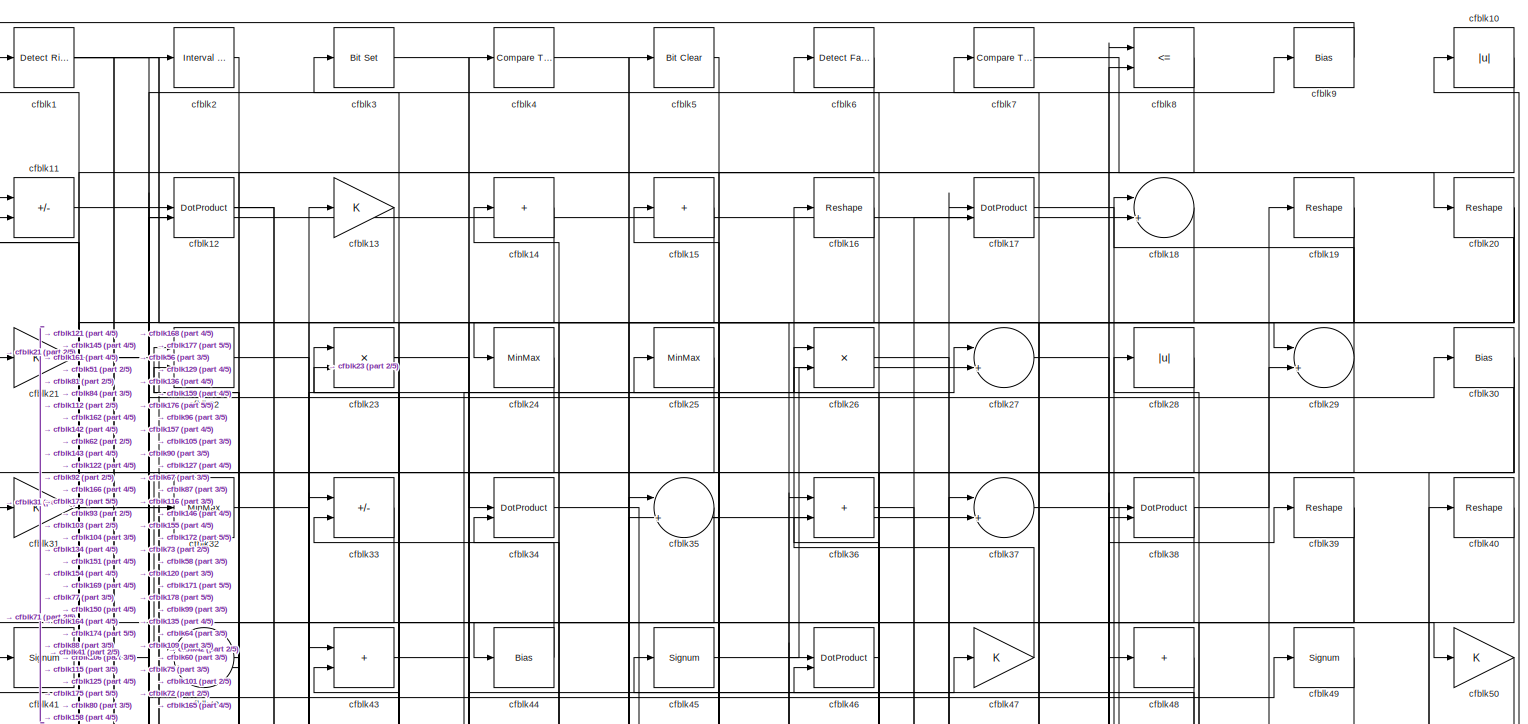
[diagram: root canvas - part 1/5, full width, top band]
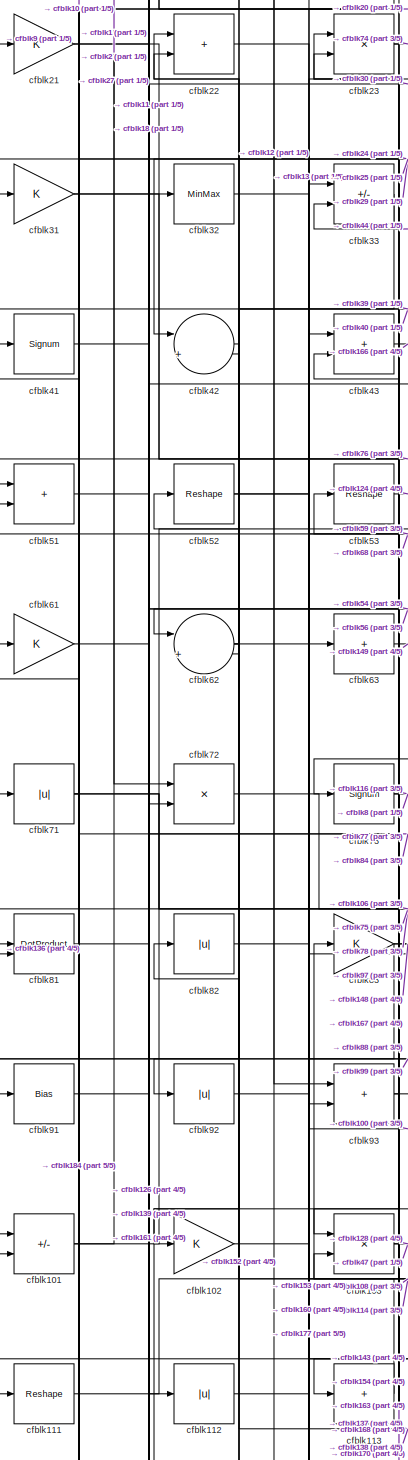
[diagram: root canvas - part 2/5, middle left region]
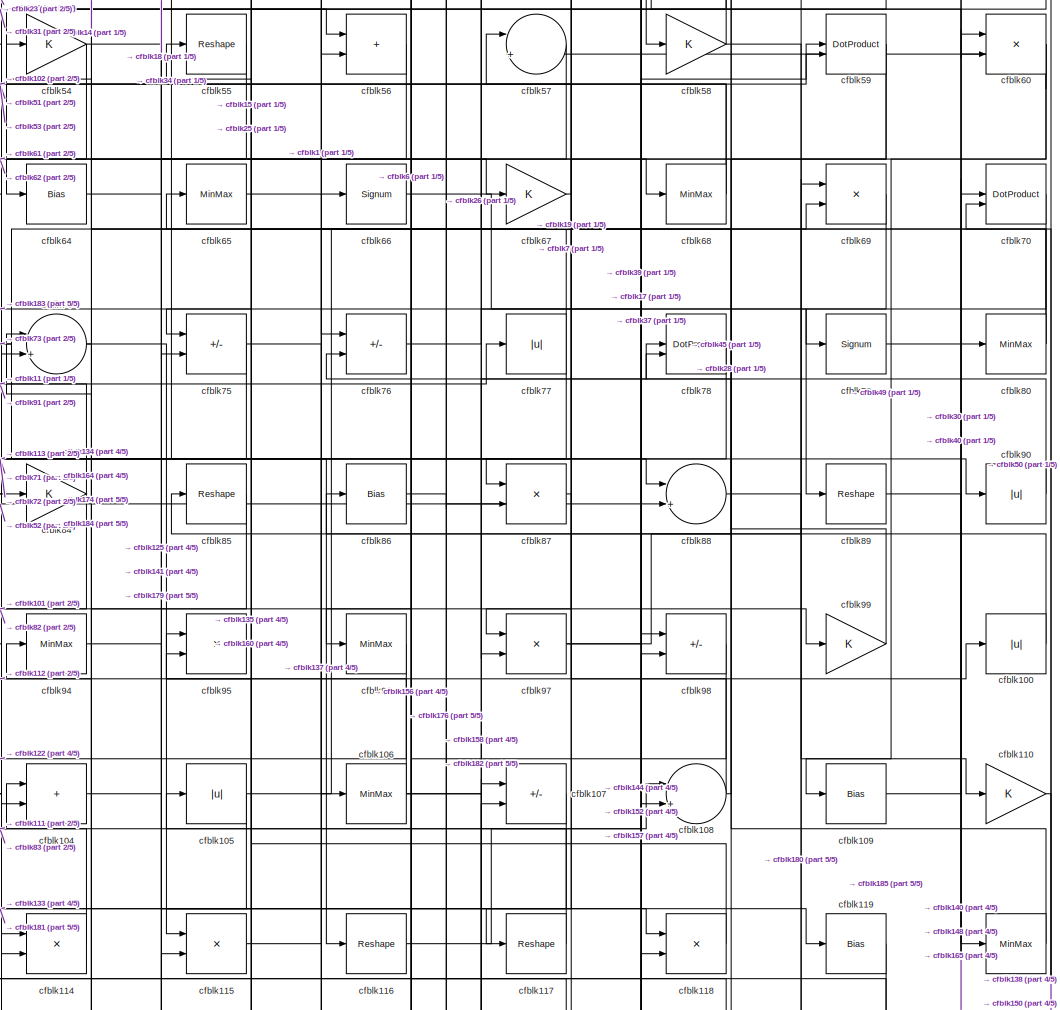
[diagram: root canvas - part 3/5, central region]
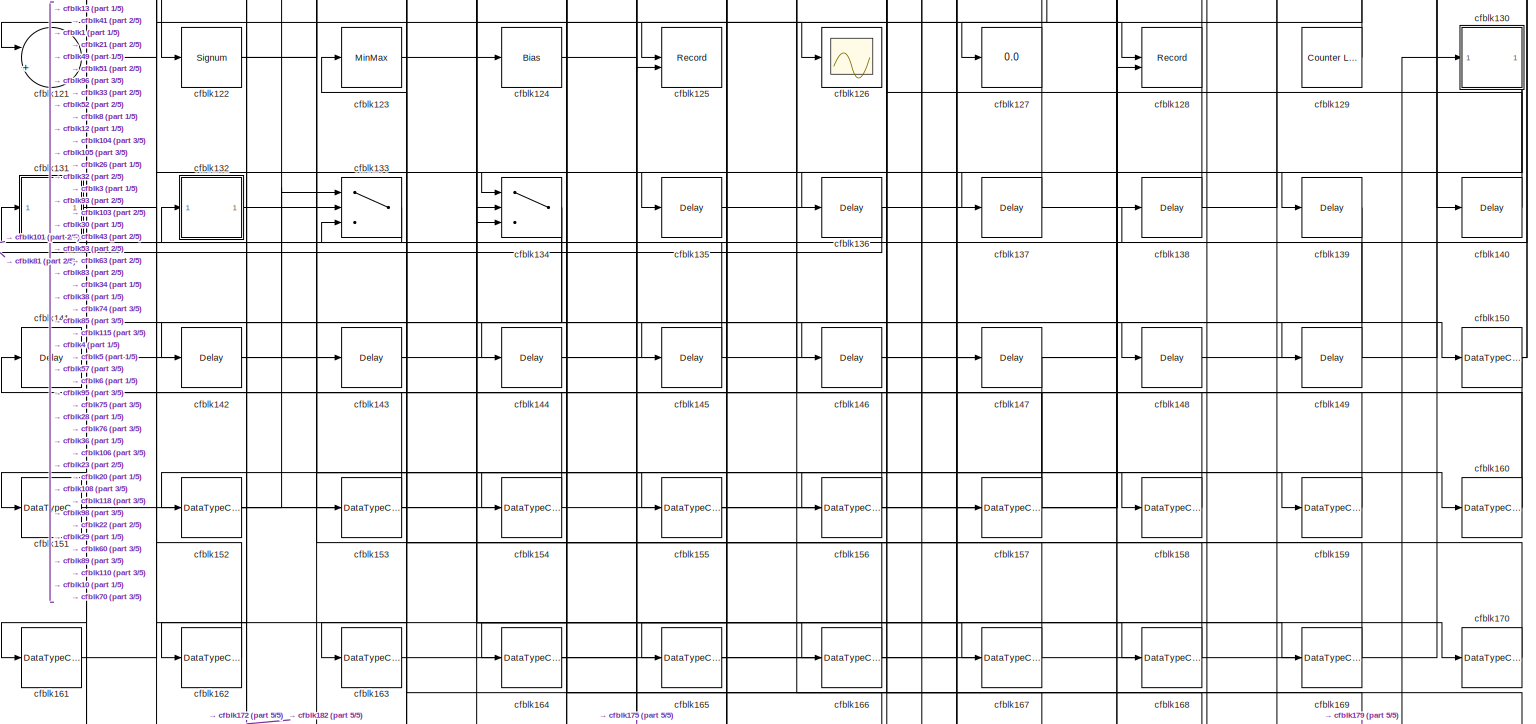
[diagram: root canvas - part 4/5, full width, bottom band]
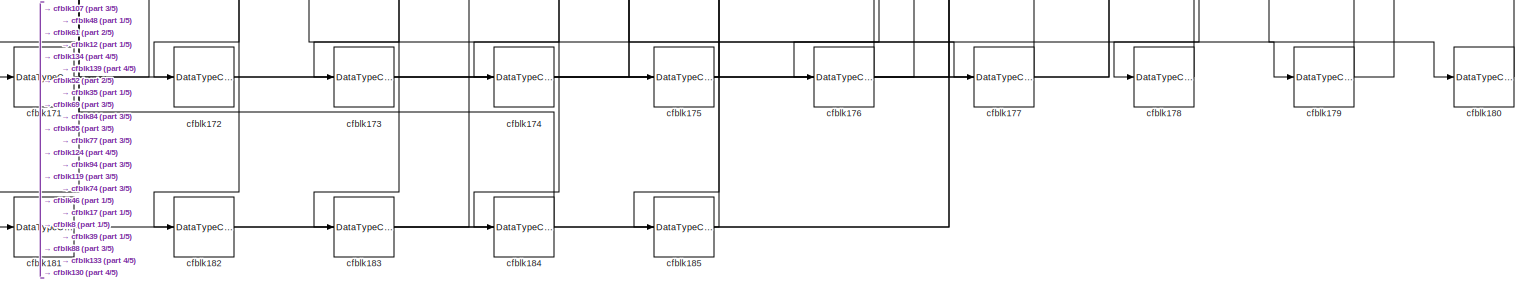
[diagram: root canvas - part 5/5, full width, bottom band]
MODEL slx_fc5c3220c49e
KIND model
CONFIG AbsTol = auto
CONFIG EnableMultiTasking = off
CONFIG FixedStep = auto
CONFIG MaxStep = auto
CONFIG MinStep = auto
CONFIG RelTol = 1e-3
CONFIG SampleTimeConstraint = Unconstrained
CONFIG SolverName = VariableStepAuto
CONFIG StartTime = 0.0
CONFIG StopTime = 10.0
BLOCK [Reference] cfblk1  REF=hdlsllib/Logic and Bit
Operations/Detect Rise
Nonnegative
  SourceBlock = hdlsllib/Logic and Bit\nOperations/Detect Rise\nNonnegative
  SourceType = Detect Rise Nonnegative
BLOCK [Abs] cfblk10
  SaturateOnIntegerOverflow = off
BLOCK [Abs] cfblk100
  SaturateOnIntegerOverflow = off
BLOCK [Sum] cfblk101
  IconShape = rectangular
  Inputs = +-
BLOCK [Gain] cfblk102
BLOCK [Product] cfblk103
  Inputs = */
  RndMeth = Zero
  SaturateOnIntegerOverflow = on
BLOCK [Sum] cfblk104
  IconShape = rectangular
BLOCK [Abs] cfblk105
  SaturateOnIntegerOverflow = off
BLOCK [MinMax] cfblk106
BLOCK [Sum] cfblk107
  IconShape = rectangular
  Inputs = +-
BLOCK [Sum] cfblk108
  Inputs = |++
BLOCK [Bias] cfblk109
  Bias = 0.0
  SaturateOnIntegerOverflow = off
BLOCK [Sum] cfblk11
  IconShape = rectangular
  Inputs = +-
BLOCK [Gain] cfblk110
BLOCK [Reshape] cfblk111
BLOCK [Abs] cfblk112
  SaturateOnIntegerOverflow = off
BLOCK [Sum] cfblk113
  IconShape = rectangular
  Inputs = +
BLOCK [Product] cfblk114
  Inputs = */
  RndMeth = Zero
  SaturateOnIntegerOverflow = on
BLOCK [Product] cfblk115
  Inputs = */
  RndMeth = Zero
  SaturateOnIntegerOverflow = on
BLOCK [Reshape] cfblk116
BLOCK [Reshape] cfblk117
BLOCK [Product] cfblk118
  Inputs = */
  RndMeth = Zero
  SaturateOnIntegerOverflow = on
BLOCK [Bias] cfblk119
  Bias = 0.0
  SaturateOnIntegerOverflow = off
BLOCK [DotProduct] cfblk12
  OutDataTypeStr = Inherit: Inherit via internal rule
BLOCK [MinMax] cfblk120
BLOCK [Sum] cfblk121
  Inputs = |++
BLOCK [Signum] cfblk122
BLOCK [MinMax] cfblk123
BLOCK [Bias] cfblk124
  Bias = 0.0
  SaturateOnIntegerOverflow = off
BLOCK [Record] cfblk125
  CompatibilityTag = XY
  FileSettingsInternal = {"entries":[{"content":{"excelSettings":{"content":{},"type":"Streamout.ExcelSettings"}},"type":"Streamout.FileSettingStorage","uuid":""}],"packageUris":["http:\/\/schema.mathworks.com\/mf0\/streamout_blocks\/R2020a"],"version":"1.0"}
  Layout = [1 1]
  SignalsInternal = {"entries":[{"content":{"signals":[{"content":{"blockPath":[],"dimensions":[1],"domain":"","lineColor":"#a2142f","plots":[1],"port":1,"signalID":5545,"signalName":"XY Graph:1"},"type":"RecordBlkView.Signal","uuid":""},{"content":{"blockPath":[],"dimensions":[1],"domain":"","lineColor":"#139fff","plots":[1],"port":2,"signalID":5548,"signalName":"XY Graph:2"},"type":"RecordBlkView.Signal","uuid":""}...<+146ch>
  VisualizationBindings = {"xyplotplugin":{"info":[{"series":[{"bindingParametersList":[{"parameter":"X-Axis","signalID":5545,"signalName":"XY Graph:1"},{"parameter":"Y-Axis","signalID":5548,"signalName":"XY Graph:2"}],"seriesID":49807}],"subplotID":1}]}}
  st = -1
BLOCK [Scope] cfblk126
  Floating = off
  NumInputPorts = 1
  ScopeSpecificationString = Simulink.scopes.TimeScopeBlockCfg('CurrentConfiguration', extmgr.ConfigurationSet(extmgr.Configuration('Core','General UI',true),extmgr.Configuration('Core','Source UI',true),extmgr.Configuration('Sources','WiredSimulink',true,'DataLoggingVariableName','ScopeData2','DataLoggingSaveFormat','Array','DataLoggingLimitDataPoints',true,'DataLoggingDecimation','1'),extmgr.Configuration('Visuals','Time Do...<+868ch>
BLOCK [Display] cfblk127
  Decimation = 1
BLOCK [Record] cfblk128
  CompatibilityTag = XY
  FileSettingsInternal = {"entries":[{"content":{"excelSettings":{"content":{},"type":"Streamout.ExcelSettings"}},"type":"Streamout.FileSettingStorage","uuid":""}],"packageUris":["http:\/\/schema.mathworks.com\/mf0\/streamout_blocks\/R2020a"],"version":"1.0"}
  Layout = [1 1]
  SignalsInternal = {"entries":[{"content":{"signals":[{"content":{"blockPath":[],"dimensions":[1],"domain":"","lineColor":"#a2142f","plots":[1],"port":1,"signalID":5553,"signalName":"XY Graph:1"},"type":"RecordBlkView.Signal","uuid":""},{"content":{"blockPath":[],"dimensions":[1],"domain":"","lineColor":"#139fff","plots":[1],"port":2,"signalID":5556,"signalName":"XY Graph:2"},"type":"RecordBlkView.Signal","uuid":""}...<+146ch>
  VisualizationBindings = {"xyplotplugin":{"info":[{"series":[{"bindingParametersList":[{"parameter":"X-Axis","signalID":5553,"signalName":"XY Graph:1"},{"parameter":"Y-Axis","signalID":5556,"signalName":"XY Graph:2"}],"seriesID":38868}],"subplotID":1}]}}
  st = -1
BLOCK [Reference] cfblk129  REF=hdlsllib/Sources/Counter
Limited
  SourceBlock = hdlsllib/Sources/Counter\nLimited
  SourceType = Counter Limited
BLOCK [Gain] cfblk13
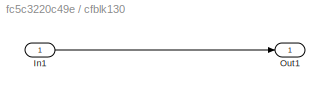
BLOCK [SubSystem] cfblk130
  LibrarySourceBlock = hdlsllib/Ports &\nSubsystems/Subsystem
BLOCK [Inport] cfblk130/In1
BLOCK [Outport] cfblk130/Out1
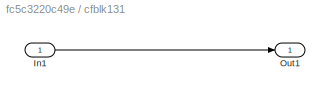
BLOCK [SubSystem] cfblk131
  LibrarySourceBlock = hdlsllib/Ports &\nSubsystems/Subsystem
BLOCK [Inport] cfblk131/In1
BLOCK [Outport] cfblk131/Out1
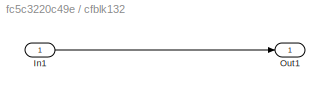
BLOCK [SubSystem] cfblk132
  LibrarySourceBlock = hdlsllib/Ports &\nSubsystems/Subsystem
BLOCK [Inport] cfblk132/In1
BLOCK [Outport] cfblk132/Out1
BLOCK [Switch] cfblk133
  InputSameDT = off
  SaturateOnIntegerOverflow = off
BLOCK [Switch] cfblk134
  InputSameDT = off
  SaturateOnIntegerOverflow = off
BLOCK [Delay] cfblk135
  InputPortMap = u0
  SampleTime = 1
BLOCK [Delay] cfblk136
  InputPortMap = u0
  SampleTime = 1
BLOCK [Delay] cfblk137
  InputPortMap = u0
  SampleTime = 1
BLOCK [Delay] cfblk138
  InputPortMap = u0
  SampleTime = 1
BLOCK [Delay] cfblk139
  InputPortMap = u0
  SampleTime = 1
BLOCK [Sum] cfblk14
  IconShape = rectangular
  Inputs = +
BLOCK [Delay] cfblk140
  InputPortMap = u0
  SampleTime = 1
BLOCK [Delay] cfblk141
  InputPortMap = u0
  SampleTime = 1
BLOCK [Delay] cfblk142
  InputPortMap = u0
  SampleTime = 1
BLOCK [Delay] cfblk143
  InputPortMap = u0
  SampleTime = 1
BLOCK [Delay] cfblk144
  InputPortMap = u0
  SampleTime = 1
BLOCK [Delay] cfblk145
  InputPortMap = u0
  SampleTime = 1
BLOCK [Delay] cfblk146
  InputPortMap = u0
  SampleTime = 1
BLOCK [Delay] cfblk147
  InputPortMap = u0
  SampleTime = 1
BLOCK [Delay] cfblk148
  InputPortMap = u0
  SampleTime = 1
BLOCK [Delay] cfblk149
  InputPortMap = u0
  SampleTime = 1
BLOCK [Sum] cfblk15
  IconShape = rectangular
  Inputs = +
BLOCK [DataTypeConversion] cfblk150
  RndMeth = Floor
  SaturateOnIntegerOverflow = off
BLOCK [DataTypeConversion] cfblk151
  OutDataTypeStr = uint8
  RndMeth = Floor
  SaturateOnIntegerOverflow = off
BLOCK [DataTypeConversion] cfblk152
  RndMeth = Floor
  SaturateOnIntegerOverflow = off
BLOCK [DataTypeConversion] cfblk153
  OutDataTypeStr = uint8
  RndMeth = Floor
  SaturateOnIntegerOverflow = off
BLOCK [DataTypeConversion] cfblk154
  OutDataTypeStr = uint8
  RndMeth = Floor
  SaturateOnIntegerOverflow = off
BLOCK [DataTypeConversion] cfblk155
  RndMeth = Floor
  SaturateOnIntegerOverflow = off
BLOCK [DataTypeConversion] cfblk156
  OutDataTypeStr = uint8
  RndMeth = Floor
  SaturateOnIntegerOverflow = off
BLOCK [DataTypeConversion] cfblk157
  RndMeth = Floor
  SaturateOnIntegerOverflow = off
BLOCK [DataTypeConversion] cfblk158
  OutDataTypeStr = uint8
  RndMeth = Floor
  SaturateOnIntegerOverflow = off
BLOCK [DataTypeConversion] cfblk159
  OutDataTypeStr = uint8
  RndMeth = Floor
  SaturateOnIntegerOverflow = off
BLOCK [Reshape] cfblk16
BLOCK [DataTypeConversion] cfblk160
  RndMeth = Floor
  SaturateOnIntegerOverflow = off
BLOCK [DataTypeConversion] cfblk161
  OutDataTypeStr = uint8
  RndMeth = Floor
  SaturateOnIntegerOverflow = off
BLOCK [DataTypeConversion] cfblk162
  OutDataTypeStr = uint8
  RndMeth = Floor
  SaturateOnIntegerOverflow = off
BLOCK [DataTypeConversion] cfblk163
  OutDataTypeStr = uint8
  RndMeth = Floor
  SaturateOnIntegerOverflow = off
BLOCK [DataTypeConversion] cfblk164
  OutDataTypeStr = boolean
  RndMeth = Floor
  SaturateOnIntegerOverflow = off
BLOCK [DataTypeConversion] cfblk165
  OutDataTypeStr = uint8
  RndMeth = Floor
  SaturateOnIntegerOverflow = off
BLOCK [DataTypeConversion] cfblk166
  OutDataTypeStr = uint8
  RndMeth = Floor
  SaturateOnIntegerOverflow = off
BLOCK [DataTypeConversion] cfblk167
  OutDataTypeStr = uint8
  RndMeth = Floor
  SaturateOnIntegerOverflow = off
BLOCK [DataTypeConversion] cfblk168
  OutDataTypeStr = uint8
  RndMeth = Floor
  SaturateOnIntegerOverflow = off
BLOCK [DataTypeConversion] cfblk169
  OutDataTypeStr = uint8
  RndMeth = Floor
  SaturateOnIntegerOverflow = off
BLOCK [DotProduct] cfblk17
  OutDataTypeStr = Inherit: Inherit via internal rule
BLOCK [DataTypeConversion] cfblk170
  OutDataTypeStr = uint8
  RndMeth = Floor
  SaturateOnIntegerOverflow = off
BLOCK [DataTypeConversion] cfblk171
  RndMeth = Floor
  SaturateOnIntegerOverflow = off
BLOCK [DataTypeConversion] cfblk172
  OutDataTypeStr = uint8
  RndMeth = Floor
  SaturateOnIntegerOverflow = off
BLOCK [DataTypeConversion] cfblk173
  OutDataTypeStr = uint8
  RndMeth = Floor
  SaturateOnIntegerOverflow = off
BLOCK [DataTypeConversion] cfblk174
  OutDataTypeStr = uint8
  RndMeth = Floor
  SaturateOnIntegerOverflow = off
BLOCK [DataTypeConversion] cfblk175
  OutDataTypeStr = uint8
  RndMeth = Floor
  SaturateOnIntegerOverflow = off
BLOCK [DataTypeConversion] cfblk176
  RndMeth = Floor
  SaturateOnIntegerOverflow = off
BLOCK [DataTypeConversion] cfblk177
  OutDataTypeStr = uint8
  RndMeth = Floor
  SaturateOnIntegerOverflow = off
BLOCK [DataTypeConversion] cfblk178
  OutDataTypeStr = uint8
  RndMeth = Floor
  SaturateOnIntegerOverflow = off
BLOCK [DataTypeConversion] cfblk179
  RndMeth = Floor
  SaturateOnIntegerOverflow = off
BLOCK [Sum] cfblk18
  Inputs = |++
BLOCK [DataTypeConversion] cfblk180
  OutDataTypeStr = uint8
  RndMeth = Floor
  SaturateOnIntegerOverflow = off
BLOCK [DataTypeConversion] cfblk181
  OutDataTypeStr = uint8
  RndMeth = Floor
  SaturateOnIntegerOverflow = off
BLOCK [DataTypeConversion] cfblk182
  OutDataTypeStr = uint8
  RndMeth = Floor
  SaturateOnIntegerOverflow = off
BLOCK [DataTypeConversion] cfblk183
  OutDataTypeStr = uint8
  RndMeth = Floor
  SaturateOnIntegerOverflow = off
BLOCK [DataTypeConversion] cfblk184
  OutDataTypeStr = uint8
  RndMeth = Floor
  SaturateOnIntegerOverflow = off
BLOCK [DataTypeConversion] cfblk185
  OutDataTypeStr = uint8
  RndMeth = Floor
  SaturateOnIntegerOverflow = off
BLOCK [Reshape] cfblk19
BLOCK [Reference] cfblk2  REF=hdlsllib/Logic and Bit
Operations/Interval Test
  SourceBlock = hdlsllib/Logic and Bit\nOperations/Interval Test
  SourceType = Interval Test
BLOCK [Reshape] cfblk20
BLOCK [Gain] cfblk21
BLOCK [Sum] cfblk22
  IconShape = rectangular
BLOCK [Product] cfblk23
  Inputs = */
  RndMeth = Zero
  SaturateOnIntegerOverflow = on
BLOCK [MinMax] cfblk24
BLOCK [MinMax] cfblk25
BLOCK [Product] cfblk26
  Inputs = */
  RndMeth = Zero
  SaturateOnIntegerOverflow = on
BLOCK [Sum] cfblk27
  Inputs = |++
BLOCK [Abs] cfblk28
  SaturateOnIntegerOverflow = off
BLOCK [Sum] cfblk29
  Inputs = |++
BLOCK [Reference] cfblk3  REF=simulink/Logic and Bit
Operations/Bit Set
  LibrarySourceBlock = hdlsllib/Logic and Bit\nOperations/Bit Set
  SourceBlock = simulink/Logic and Bit\nOperations/Bit Set
  SourceType = Bit Set
BLOCK [Bias] cfblk30
  Bias = 0.0
  SaturateOnIntegerOverflow = off
BLOCK [Gain] cfblk31
BLOCK [MinMax] cfblk32
BLOCK [Sum] cfblk33
  IconShape = rectangular
  Inputs = +-
BLOCK [DotProduct] cfblk34
  OutDataTypeStr = Inherit: Inherit via internal rule
BLOCK [Sum] cfblk35
  Inputs = |++
BLOCK [Sum] cfblk36
  IconShape = rectangular
BLOCK [Sum] cfblk37
  Inputs = |++
BLOCK [DotProduct] cfblk38
  OutDataTypeStr = Inherit: Inherit via internal rule
BLOCK [Reshape] cfblk39
BLOCK [Reference] cfblk4  REF=hdlsllib/Logic and Bit
Operations/Compare
To Zero
  SourceBlock = hdlsllib/Logic and Bit\nOperations/Compare\nTo Zero
  SourceType = Compare To Zero
BLOCK [Reshape] cfblk40
BLOCK [Signum] cfblk41
BLOCK [Sum] cfblk42
  Inputs = |++
BLOCK [Sum] cfblk43
  IconShape = rectangular
BLOCK [Bias] cfblk44
  Bias = 0.0
  SaturateOnIntegerOverflow = off
BLOCK [Signum] cfblk45
BLOCK [DotProduct] cfblk46
  OutDataTypeStr = Inherit: Inherit via internal rule
BLOCK [Gain] cfblk47
BLOCK [Sum] cfblk48
  IconShape = rectangular
  Inputs = +
BLOCK [Signum] cfblk49
BLOCK [Reference] cfblk5  REF=simulink/Logic and Bit
Operations/Bit Clear
  LibrarySourceBlock = hdlsllib/Logic and Bit\nOperations/Bit Clear
  SourceBlock = simulink/Logic and Bit\nOperations/Bit Clear
  SourceType = Bit Clear
BLOCK [Gain] cfblk50
BLOCK [Sum] cfblk51
  IconShape = rectangular
BLOCK [Reshape] cfblk52
BLOCK [Reshape] cfblk53
BLOCK [Gain] cfblk54
BLOCK [Reshape] cfblk55
BLOCK [Sum] cfblk56
  IconShape = rectangular
BLOCK [Sum] cfblk57
  Inputs = |++
BLOCK [Gain] cfblk58
BLOCK [DotProduct] cfblk59
  OutDataTypeStr = Inherit: Inherit via internal rule
BLOCK [Reference] cfblk6  REF=hdlsllib/Logic and Bit
Operations/Detect Fall
Nonpositive
  SourceBlock = hdlsllib/Logic and Bit\nOperations/Detect Fall\nNonpositive
  SourceType = Detect Fall Nonpositive
BLOCK [Product] cfblk60
  Inputs = */
  RndMeth = Zero
  SaturateOnIntegerOverflow = on
BLOCK [Gain] cfblk61
BLOCK [Sum] cfblk62
  Inputs = |++
BLOCK [Sum] cfblk63
  IconShape = rectangular
  Inputs = +
BLOCK [Bias] cfblk64
  Bias = 0.0
  SaturateOnIntegerOverflow = off
BLOCK [MinMax] cfblk65
BLOCK [Signum] cfblk66
BLOCK [Gain] cfblk67
BLOCK [MinMax] cfblk68
BLOCK [Product] cfblk69
  Inputs = */
  RndMeth = Zero
  SaturateOnIntegerOverflow = on
BLOCK [Reference] cfblk7  REF=hdlsllib/Logic and Bit
Operations/Compare
To Constant
  SourceBlock = hdlsllib/Logic and Bit\nOperations/Compare\nTo Constant
  SourceType = Compare To Constant
BLOCK [DotProduct] cfblk70
  OutDataTypeStr = Inherit: Inherit via internal rule
BLOCK [Abs] cfblk71
  SaturateOnIntegerOverflow = off
BLOCK [Product] cfblk72
  Inputs = */
  RndMeth = Zero
  SaturateOnIntegerOverflow = on
BLOCK [Signum] cfblk73
BLOCK [Sum] cfblk74
  Inputs = |++
BLOCK [Sum] cfblk75
  IconShape = rectangular
  Inputs = +-
BLOCK [Sum] cfblk76
  IconShape = rectangular
  Inputs = +-
BLOCK [Abs] cfblk77
  SaturateOnIntegerOverflow = off
BLOCK [DotProduct] cfblk78
  OutDataTypeStr = Inherit: Inherit via internal rule
BLOCK [Signum] cfblk79
BLOCK [RelationalOperator] cfblk8
  InputSameDT = off
  Operator = <=
  OutDataTypeStr = boolean
BLOCK [MinMax] cfblk80
BLOCK [DotProduct] cfblk81
  OutDataTypeStr = Inherit: Inherit via internal rule
BLOCK [Abs] cfblk82
  SaturateOnIntegerOverflow = off
BLOCK [Gain] cfblk83
BLOCK [Gain] cfblk84
BLOCK [Reshape] cfblk85
BLOCK [Bias] cfblk86
  Bias = 0.0
  SaturateOnIntegerOverflow = off
BLOCK [Product] cfblk87
  Inputs = */
  RndMeth = Zero
  SaturateOnIntegerOverflow = on
BLOCK [Sum] cfblk88
  Inputs = |++
BLOCK [Reshape] cfblk89
BLOCK [Bias] cfblk9
  Bias = 0.0
  SaturateOnIntegerOverflow = off
BLOCK [Abs] cfblk90
  SaturateOnIntegerOverflow = off
BLOCK [Bias] cfblk91
  Bias = 0.0
  SaturateOnIntegerOverflow = off
BLOCK [Abs] cfblk92
  SaturateOnIntegerOverflow = off
BLOCK [Sum] cfblk93
  IconShape = rectangular
BLOCK [MinMax] cfblk94
BLOCK [Product] cfblk95
  Inputs = */
  RndMeth = Zero
  SaturateOnIntegerOverflow = on
BLOCK [MinMax] cfblk96
BLOCK [Product] cfblk97
  Inputs = */
  RndMeth = Zero
  SaturateOnIntegerOverflow = on
BLOCK [Sum] cfblk98
  IconShape = rectangular
  Inputs = +-
BLOCK [Gain] cfblk99
LINE cfblk100:1 -> cfblk86:1
NET cfblk101:1 -> cfblk27:1, cfblk2:1
LINE cfblk102:1 -> cfblk59:1
NET cfblk103:1 -> cfblk128:1, cfblk47:1
LINE cfblk104:1 -> cfblk118:1
NET cfblk105:1 -> cfblk133:2, cfblk37:1
NET cfblk106:1 -> cfblk158:1, cfblk25:1, cfblk78:2
LINE cfblk107:1 -> cfblk181:1
NET cfblk108:1 -> cfblk57:1, cfblk78:1
LINE cfblk109:1 -> cfblk40:1
LINE cfblk10:1 -> cfblk51:1
LINE cfblk110:1 -> cfblk138:1
LINE cfblk111:1 -> cfblk108:1
LINE cfblk112:1 -> cfblk100:1
LINE cfblk113:1 -> cfblk82:1
LINE cfblk114:1 -> cfblk83:1
LINE cfblk115:1 -> cfblk69:2
LINE cfblk116:1 -> cfblk39:1
LINE cfblk117:1 -> cfblk95:1
LINE cfblk118:1 -> cfblk95:2
LINE cfblk119:1 -> cfblk185:1
LINE cfblk11:1 -> cfblk112:1
LINE cfblk120:1 -> cfblk65:1
LINE cfblk121:1 -> cfblk49:1
NET cfblk122:1 -> cfblk104:1, cfblk26:2
LINE cfblk123:1 -> cfblk169:1
LINE cfblk124:1 -> cfblk175:1
LINE cfblk129:1 -> cfblk26:1
NET cfblk12:1 -> cfblk143:1, cfblk93:1
LINE cfblk130/In1:1 -> cfblk130/Out1:1
NET cfblk130:1 -> cfblk144:1, cfblk145:1
LINE cfblk131/In1:1 -> cfblk131/Out1:1
LINE cfblk131:1 -> cfblk146:1
LINE cfblk132/In1:1 -> cfblk132/Out1:1
LINE cfblk132:1 -> cfblk155:1
LINE cfblk133:1 -> cfblk131:1
NET cfblk134:1 -> cfblk151:1, cfblk172:1
LINE cfblk135:1 -> cfblk29:2
LINE cfblk136:1 -> cfblk81:2
LINE cfblk137:1 -> cfblk23:2
LINE cfblk138:1 -> cfblk22:2
LINE cfblk139:1 -> cfblk182:1
LINE cfblk13:1 -> cfblk161:1
LINE cfblk140:1 -> cfblk76:2
LINE cfblk141:1 -> cfblk115:2
LINE cfblk142:1 -> cfblk159:1
LINE cfblk143:1 -> cfblk103:2
LINE cfblk144:1 -> cfblk98:2
LINE cfblk145:1 -> cfblk1:1
LINE cfblk146:1 -> cfblk38:1
LINE cfblk147:1 -> cfblk162:1
LINE cfblk148:1 -> cfblk60:1
LINE cfblk149:1 -> cfblk101:1
LINE cfblk14:1 -> cfblk104:2
NET cfblk150:1 -> cfblk10:1, cfblk141:1, cfblk70:2
LINE cfblk151:1 -> cfblk4:1
NET cfblk152:1 -> cfblk118:2, cfblk133:1, cfblk52:1
LINE cfblk153:1 -> cfblk33:1
LINE cfblk154:1 -> cfblk33:2
NET cfblk155:1 -> cfblk128:2, cfblk38:2
LINE cfblk156:1 -> cfblk132:1
NET cfblk157:1 -> cfblk108:2, cfblk121:2, cfblk134:2
LINE cfblk158:1 -> cfblk36:1
LINE cfblk159:1 -> cfblk36:2
LINE cfblk15:1 -> cfblk44:1
NET cfblk160:1 -> cfblk105:1, cfblk41:1
LINE cfblk161:1 -> cfblk32:1
LINE cfblk162:1 -> cfblk12:1
LINE cfblk163:1 -> cfblk147:1
LINE cfblk164:1 -> cfblk5:1
LINE cfblk165:1 -> cfblk70:1
LINE cfblk166:1 -> cfblk3:1
LINE cfblk167:1 -> cfblk43:1
LINE cfblk168:1 -> cfblk43:2
LINE cfblk169:1 -> cfblk34:2
LINE cfblk16:1 -> cfblk24:1
LINE cfblk170:1 -> cfblk123:1
NET cfblk171:1 -> cfblk12:2, cfblk8:1
LINE cfblk172:1 -> cfblk48:1
LINE cfblk173:1 -> cfblk17:1
LINE cfblk174:1 -> cfblk35:1
LINE cfblk175:1 -> cfblk35:2
NET cfblk176:1 -> cfblk17:2, cfblk74:1
LINE cfblk177:1 -> cfblk46:1
LINE cfblk178:1 -> cfblk46:2
NET cfblk179:1 -> cfblk130:1, cfblk133:3
LINE cfblk17:1 -> cfblk58:1
LINE cfblk180:1 -> cfblk94:1
LINE cfblk181:1 -> cfblk84:1
LINE cfblk182:1 -> cfblk107:1
LINE cfblk183:1 -> cfblk107:2
LINE cfblk184:1 -> cfblk61:1
LINE cfblk185:1 -> cfblk55:1
LINE cfblk18:1 -> cfblk75:2
NET cfblk19:1 -> cfblk115:1, cfblk87:1
NET cfblk1:1 -> cfblk168:1, cfblk29:1, cfblk56:2, cfblk72:1
NET cfblk20:1 -> cfblk121:1, cfblk127:1, cfblk73:1, cfblk93:2
NET cfblk21:1 -> cfblk126:1, cfblk56:1
LINE cfblk22:1 -> cfblk153:1
NET cfblk23:1 -> cfblk103:1, cfblk74:2
LINE cfblk24:1 -> cfblk81:1
LINE cfblk25:1 -> cfblk42:1
LINE cfblk26:1 -> cfblk90:1
LINE cfblk27:1 -> cfblk50:1
LINE cfblk28:1 -> cfblk136:1
NET cfblk29:1 -> cfblk18:1, cfblk31:1
LINE cfblk2:1 -> cfblk62:2
NET cfblk30:1 -> cfblk134:3, cfblk60:2, cfblk96:1
NET cfblk31:1 -> cfblk18:2, cfblk76:1
LINE cfblk32:1 -> cfblk160:1
LINE cfblk33:1 -> cfblk152:1
LINE cfblk34:1 -> cfblk88:1
LINE cfblk35:1 -> cfblk173:1
LINE cfblk36:1 -> cfblk157:1
LINE cfblk37:1 -> cfblk120:1
NET cfblk38:1 -> cfblk154:1, cfblk19:1
NET cfblk39:1 -> cfblk178:1, cfblk42:2
LINE cfblk3:1 -> cfblk34:1
LINE cfblk40:1 -> cfblk71:1
LINE cfblk41:1 -> cfblk9:1
LINE cfblk42:1 -> cfblk92:1
LINE cfblk43:1 -> cfblk166:1
LINE cfblk44:1 -> cfblk23:1
LINE cfblk45:1 -> cfblk27:2
LINE cfblk46:1 -> cfblk176:1
LINE cfblk47:1 -> cfblk16:1
LINE cfblk48:1 -> cfblk171:1
LINE cfblk49:1 -> cfblk64:1
LINE cfblk4:1 -> cfblk150:1
LINE cfblk50:1 -> cfblk75:1
LINE cfblk51:1 -> cfblk139:1
NET cfblk52:1 -> cfblk177:1, cfblk88:2
LINE cfblk53:1 -> cfblk124:1
NET cfblk54:1 -> cfblk67:1, cfblk72:2
LINE cfblk55:1 -> cfblk184:1
LINE cfblk56:1 -> cfblk62:1
LINE cfblk57:1 -> cfblk125:2
NET cfblk58:1 -> cfblk110:1, cfblk45:1
NET cfblk59:1 -> cfblk114:2, cfblk85:1
LINE cfblk5:1 -> cfblk165:1
NET cfblk60:1 -> cfblk109:1, cfblk57:2, cfblk97:1
LINE cfblk61:1 -> cfblk68:1
NET cfblk62:1 -> cfblk102:1, cfblk22:1, cfblk63:1
LINE cfblk63:1 -> cfblk149:1
LINE cfblk64:1 -> cfblk37:2
LINE cfblk65:1 -> cfblk66:1
LINE cfblk66:1 -> cfblk98:1
LINE cfblk67:1 -> cfblk7:1
NET cfblk68:1 -> cfblk51:2, cfblk53:1
LINE cfblk69:1 -> cfblk183:1
LINE cfblk6:1 -> cfblk125:1
LINE cfblk70:1 -> cfblk89:1
NET cfblk71:1 -> cfblk106:1, cfblk11:2, cfblk97:2
LINE cfblk72:1 -> cfblk114:1
NET cfblk73:1 -> cfblk116:1, cfblk8:2
NET cfblk74:1 -> cfblk119:1, cfblk134:1
NET cfblk75:1 -> cfblk111:1, cfblk137:1
LINE cfblk76:1 -> cfblk79:1
NET cfblk77:1 -> cfblk14:1, cfblk174:1
LINE cfblk78:1 -> cfblk113:1
LINE cfblk79:1 -> cfblk80:1
LINE cfblk7:1 -> cfblk20:1
NET cfblk80:1 -> cfblk15:1, cfblk54:1
LINE cfblk81:1 -> cfblk30:1
LINE cfblk82:1 -> cfblk99:1
NET cfblk83:1 -> cfblk148:1, cfblk167:1, cfblk91:1
NET cfblk84:1 -> cfblk101:2, cfblk11:1
LINE cfblk85:1 -> cfblk164:1
LINE cfblk86:1 -> cfblk87:2
LINE cfblk87:1 -> cfblk117:1
LINE cfblk88:1 -> cfblk180:1
LINE cfblk89:1 -> cfblk140:1
LINE cfblk8:1 -> cfblk142:1
LINE cfblk90:1 -> cfblk6:1
LINE cfblk91:1 -> cfblk77:1
LINE cfblk92:1 -> cfblk13:1
NET cfblk93:1 -> cfblk163:1, cfblk170:1
LINE cfblk94:1 -> cfblk179:1
LINE cfblk95:1 -> cfblk135:1
LINE cfblk96:1 -> cfblk122:1
NET cfblk97:1 -> cfblk59:2, cfblk69:1
LINE cfblk98:1 -> cfblk156:1
LINE cfblk99:1 -> cfblk28:1
LINE cfblk9:1 -> cfblk21:1
note: NET lines group one-source signal fan-out (src -> all destinations, sorted); 1:1 wires keep LINE
